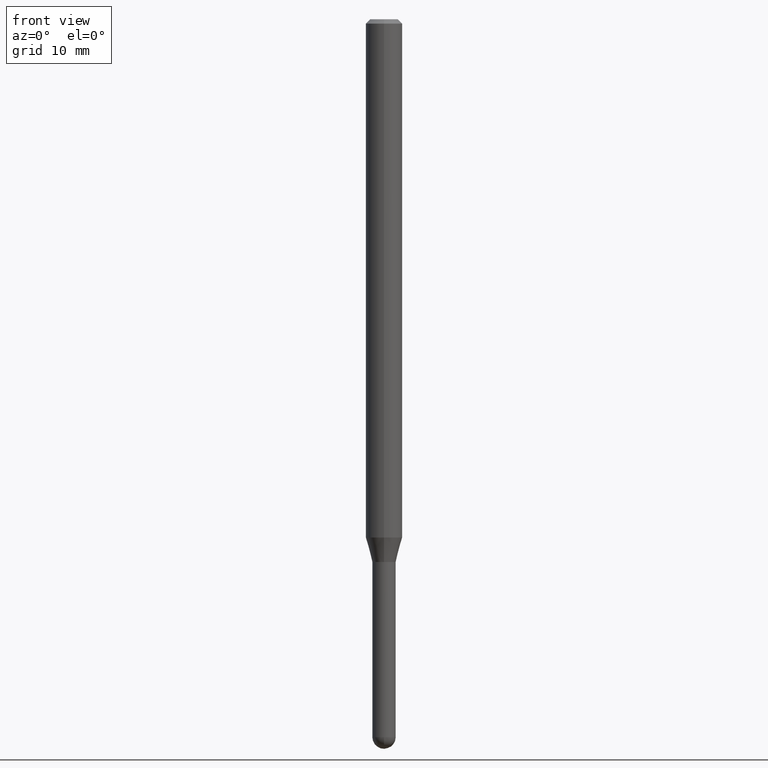
[diagram: clean part render]
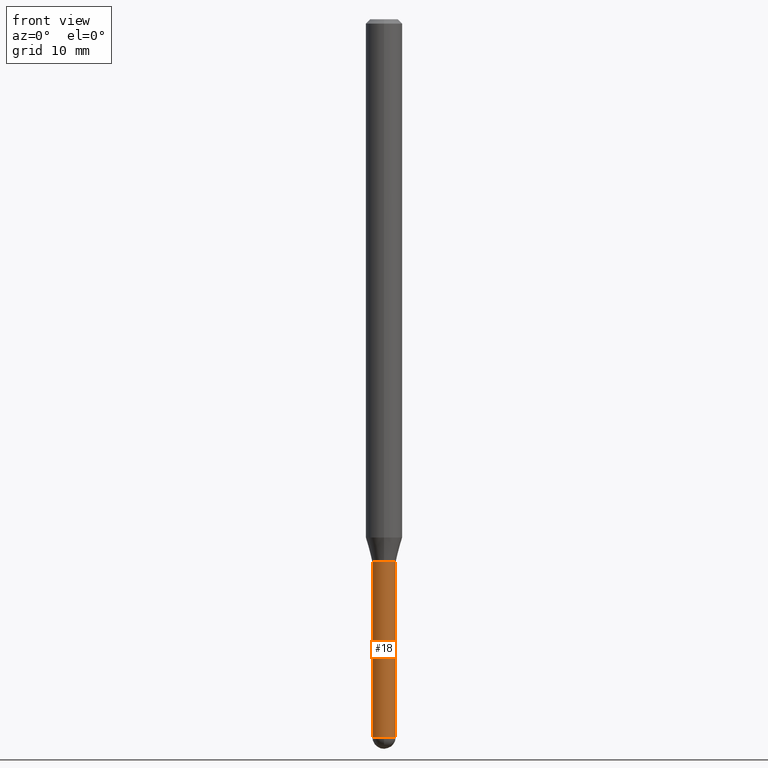
[diagram: same view with one face highlighted and labeled with its STEP entity id]
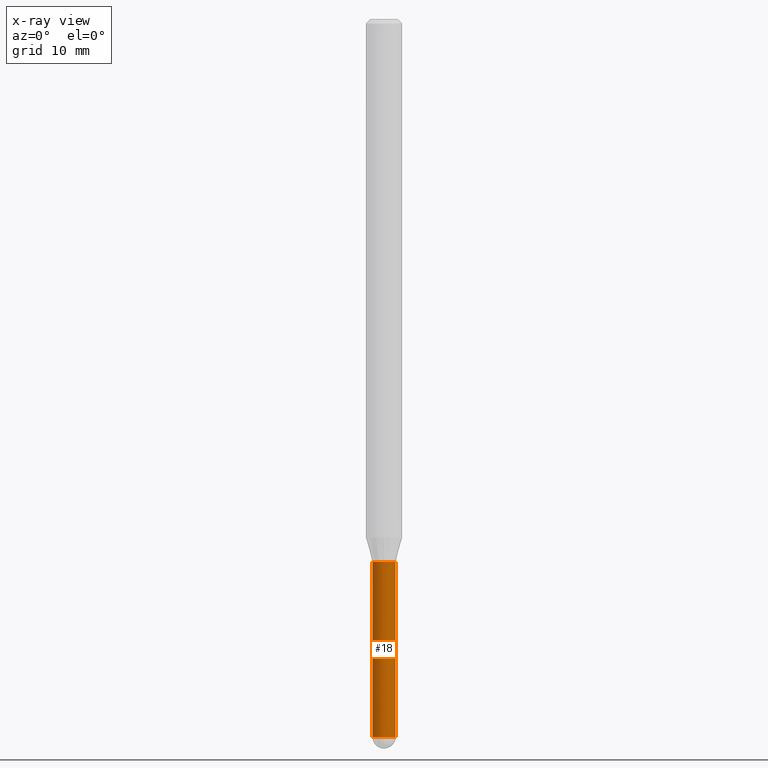
[diagram: x-ray of the same camera — body ghosted, the highlighted face saturated]
A machine part, front view. The second image highlights one B-rep face of the part: STEP entity #18.
The next image is the same camera in x-ray: the body ghosted, the highlighted face saturated — about 0% of this face is hidden behind the body in this view.
In plain terms, the highlighted cylindrical surface (edge-blend (fillet) strip) has radius 1.016 mm, axis along (-0, 0, 1).
Its self-contained STEP definition (entity closure, byte-faithful):
#18 = ADVANCED_FACE ( 'NONE', ( #210 ), #448, .T. ) ;
#21 = EDGE_LOOP ( 'NONE', ( #95, #106, #425, #191, #302 ) ) ;
#32 = VECTOR ( 'NONE', #245, 39.37007874015748143 ) ;
#48 = EDGE_CURVE ( 'NONE', #70, #419, #471, .T. ) ;
#50 = AXIS2_PLACEMENT_3D ( 'NONE', #394, #209, #314 ) ;
#59 = DIRECTION ( 'NONE',  ( 1.000000000000000000, -6.982962677686265922E-15, 4.876176775795935793E-29 ) ) ;
#69 = EDGE_CURVE ( 'NONE', #294, #419, #495, .T. ) ;
#70 = VERTEX_POINT ( 'NONE', #269 ) ;
#71 = CARTESIAN_POINT ( 'NONE',  ( 6.015853263215436432E-29, -8.589044093554138346E-15, -2.459999999999999964 ) ) ;
#95 = ORIENTED_EDGE ( 'NONE', *, *, #99, .F. ) ;
#96 = DIRECTION ( 'NONE',  ( -2.445468806185136877E-29, 3.491481338843145188E-15, 1.000000000000000000 ) ) ;
#99 = EDGE_CURVE ( 'NONE', #318, #70, #464, .T. ) ;
#106 = ORIENTED_EDGE ( 'NONE', *, *, #179, .T. ) ;
#125 = DIRECTION ( 'NONE',  ( 1.000000000000000000, -6.982962677686259611E-15, 0.000000000000000000 ) ) ;
#138 = DIRECTION ( 'NONE',  ( -2.445468806185136597E-29, 3.491481338843145583E-15, 1.000000000000000000 ) ) ;
#152 = EDGE_CURVE ( 'NONE', #509, #294, #474, .T. ) ;
#169 = CARTESIAN_POINT ( 'NONE',  ( 0.000000000000000000, 0.000000000000000000, 0.000000000000000000 ) ) ;
#177 = CARTESIAN_POINT ( 'NONE',  ( 0.04000000000000000083, -7.820918199008643644E-15, -2.459999999999999964 ) ) ;
#179 = EDGE_CURVE ( 'NONE', #318, #509, #289, .T. ) ;
#191 = ORIENTED_EDGE ( 'NONE', *, *, #69, .T. ) ;
#209 = DIRECTION ( 'NONE',  ( -2.445468806185136597E-29, 3.491481338843145583E-15, 1.000000000000000000 ) ) ;
#210 = FACE_OUTER_BOUND ( 'NONE', #21, .T. ) ;
#226 = DIRECTION ( 'NONE',  ( -2.445468806185136597E-29, 3.491481338843145583E-15, 1.000000000000000000 ) ) ;
#245 = DIRECTION ( 'NONE',  ( -2.445468806185136877E-29, 3.491481338843145188E-15, 1.000000000000000000 ) ) ;
#267 = AXIS2_PLACEMENT_3D ( 'NONE', #379, #138, #125 ) ;
#269 = CARTESIAN_POINT ( 'NONE',  ( -0.04000000000000000083, -7.257382597597153280E-15, -1.860000000000000098 ) ) ;
#289 = CIRCLE ( 'NONE', #296, 0.04000000000000000083 ) ;
#294 = VERTEX_POINT ( 'NONE', #177 ) ;
#296 = AXIS2_PLACEMENT_3D ( 'NONE', #71, #226, #434 ) ;
#302 = ORIENTED_EDGE ( 'NONE', *, *, #48, .F. ) ;
#314 = DIRECTION ( 'NONE',  ( 1.000000000000000000, -6.982962677686259611E-15, 0.000000000000000000 ) ) ;
#318 = VERTEX_POINT ( 'NONE', #344 ) ;
#324 = CARTESIAN_POINT ( 'NONE',  ( -0.04000000000000000083, 2.842170943040400803E-16, -1.967574036101962509E-30 ) ) ;
#335 = AXIS2_PLACEMENT_3D ( 'NONE', #169, #490, #59 ) ;
#344 = CARTESIAN_POINT ( 'NONE',  ( -0.04000000000000000083, -7.257382597597153280E-15, -2.459999999999999964 ) ) ;
#363 = VECTOR ( 'NONE', #96, 39.37007874015748143 ) ;
#379 = CARTESIAN_POINT ( 'NONE',  ( 4.548571979504354361E-29, -6.494155290248250444E-15, -1.860000000000000098 ) ) ;
#392 = CARTESIAN_POINT ( 'NONE',  ( -2.842170943039801268E-16, -0.04000000000000862588, -2.459999999999999520 ) ) ;
#394 = CARTESIAN_POINT ( 'NONE',  ( 6.015853263215436432E-29, -8.589044093554138346E-15, -2.459999999999999964 ) ) ;
#419 = VERTEX_POINT ( 'NONE', #482 ) ;
#425 = ORIENTED_EDGE ( 'NONE', *, *, #152, .T. ) ;
#434 = DIRECTION ( 'NONE',  ( 1.000000000000000000, -6.982962677686259611E-15, 0.000000000000000000 ) ) ;
#448 = CYLINDRICAL_SURFACE ( 'NONE', #335, 0.04000000000000000083 ) ;
#454 = CARTESIAN_POINT ( 'NONE',  ( 0.04000000000000000083, -2.793185071074506290E-16, 1.950470710318374387E-30 ) ) ;
#464 = LINE ( 'NONE', #324, #32 ) ;
#471 = CIRCLE ( 'NONE', #267, 0.04000000000000000083 ) ;
#474 = CIRCLE ( 'NONE', #50, 0.04000000000000000083 ) ;
#482 = CARTESIAN_POINT ( 'NONE',  ( 0.04000000000000000083, -6.773473797355701271E-15, -1.860000000000000098 ) ) ;
#490 = DIRECTION ( 'NONE',  ( -2.445468806185136597E-29, 3.491481338843145583E-15, 1.000000000000000000 ) ) ;
#495 = LINE ( 'NONE', #454, #363 ) ;
#509 = VERTEX_POINT ( 'NONE', #392 ) ;